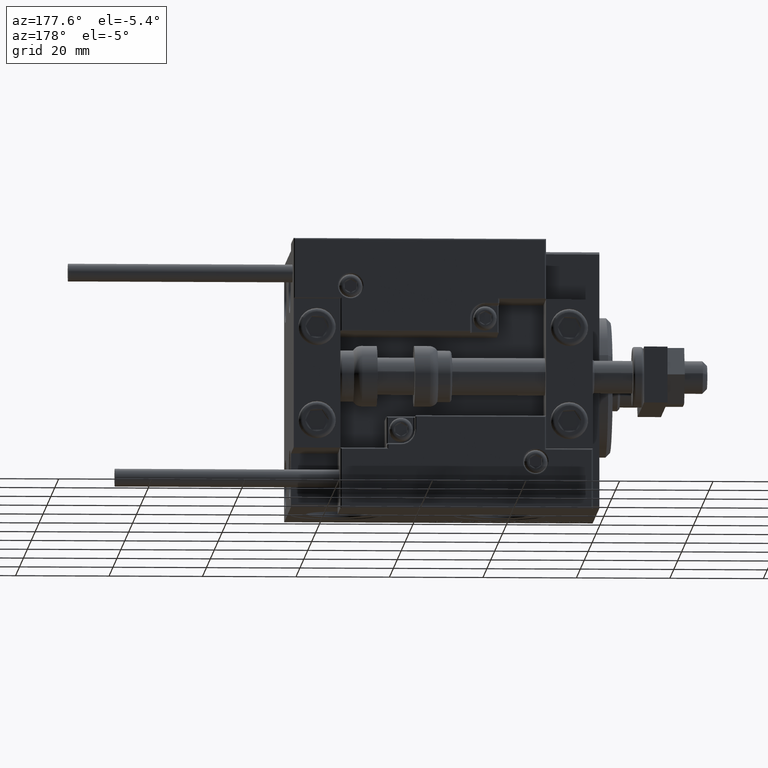
[diagram: clean part render]
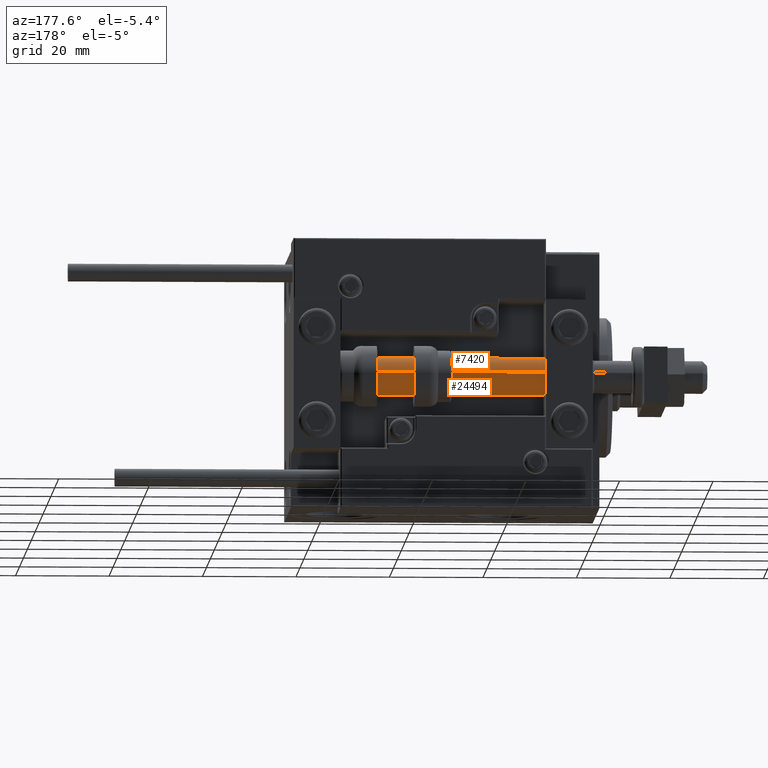
[diagram: same view with one multi-face feature highlighted, each face labeled with its STEP entity id]
A machine part, auxiliary view. The highlighted faces form ONE feature: a constant-radius fillet chain: 2 tangent blend faces with common blend radius 4 mm. The faces share edges in the B-rep.
Their STEP definitions:
[1] entity #24494 (Cylinder):
#1472 = LINE ( 'NONE', #17005, #49169 ) ;
#3094 = DIRECTION ( 'NONE',  ( 1.000000000000000000, 0.000000000000000000, 0.000000000000000000 ) ) ;
#3493 = VECTOR ( 'NONE', #29666, 1000.000000000000000 ) ;
#4555 = CIRCLE ( 'NONE', #46066, 4.000000000000000000 ) ;
#6916 = CARTESIAN_POINT ( 'NONE',  ( 0.000000000000000000, 0.000000000000000000, 2.000000000000029310 ) ) ;
#7863 = CARTESIAN_POINT ( 'NONE',  ( -4.000000000000000000, 0.000000000000000000, 2.000000000000029310 ) ) ;
#8105 = AXIS2_PLACEMENT_3D ( 'NONE', #17484, #17982, #9845 ) ;
#9845 = DIRECTION ( 'NONE',  ( -1.000000000000000000, 0.000000000000000000, 0.000000000000000000 ) ) ;
#11664 = EDGE_CURVE ( 'NONE', #14762, #21387, #4555, .T. ) ;
#14141 = LINE ( 'NONE', #45480, #3493 ) ;
#14762 = VERTEX_POINT ( 'NONE', #43101 ) ;
#15980 = ORIENTED_EDGE ( 'NONE', *, *, #47345, .T. ) ;
#16066 = ORIENTED_EDGE ( 'NONE', *, *, #11664, .F. ) ;
#16491 = EDGE_LOOP ( 'NONE', ( #19307, #16066, #47642, #15980 ) ) ;
#17005 = CARTESIAN_POINT ( 'NONE',  ( 4.000000000000000000, 4.898587196589412829E-16, 66.00000000000000000 ) ) ;
#17484 = CARTESIAN_POINT ( 'NONE',  ( 0.000000000000000000, 0.000000000000000000, 66.00000000000000000 ) ) ;
#17849 = FACE_OUTER_BOUND ( 'NONE', #16491, .T. ) ;
#17982 = DIRECTION ( 'NONE',  ( -0.000000000000000000, -0.000000000000000000, -1.000000000000000000 ) ) ;
#18223 = CARTESIAN_POINT ( 'NONE',  ( 4.000000000000000000, 4.898587196589412829E-16, 2.000000000000029310 ) ) ;
#19307 = ORIENTED_EDGE ( 'NONE', *, *, #31605, .F. ) ;
#19613 = DIRECTION ( 'NONE',  ( 0.000000000000000000, 0.000000000000000000, 1.000000000000000000 ) ) ;
#21387 = VERTEX_POINT ( 'NONE', #34748 ) ;
#24494 = ADVANCED_FACE ( 'NONE', ( #17849 ), #44495, .T. ) ;
#29666 = DIRECTION ( 'NONE',  ( -0.000000000000000000, -0.000000000000000000, -1.000000000000000000 ) ) ;
#31384 = AXIS2_PLACEMENT_3D ( 'NONE', #6916, #34183, #3094 ) ;
#31605 = EDGE_CURVE ( 'NONE', #21387, #36682, #1472, .T. ) ;
#32545 = DIRECTION ( 'NONE',  ( -0.000000000000000000, -0.000000000000000000, -1.000000000000000000 ) ) ;
#34183 = DIRECTION ( 'NONE',  ( -0.000000000000000000, -0.000000000000000000, 1.000000000000000000 ) ) ;
#34748 = CARTESIAN_POINT ( 'NONE',  ( 4.000000000000000000, 4.898587196589412829E-16, 66.00000000000000000 ) ) ;
#36682 = VERTEX_POINT ( 'NONE', #18223 ) ;
#39679 = EDGE_CURVE ( 'NONE', #14762, #43088, #14141, .T. ) ;
#43088 = VERTEX_POINT ( 'NONE', #7863 ) ;
#43101 = CARTESIAN_POINT ( 'NONE',  ( -4.000000000000000000, 0.000000000000000000, 66.00000000000000000 ) ) ;
#44495 = CYLINDRICAL_SURFACE ( 'NONE', #8105, 4.000000000000000000 ) ;
#45480 = CARTESIAN_POINT ( 'NONE',  ( -4.000000000000000000, 0.000000000000000000, 66.00000000000000000 ) ) ;
#46066 = AXIS2_PLACEMENT_3D ( 'NONE', #47392, #19613, #47142 ) ;
#46868 = CIRCLE ( 'NONE', #31384, 4.000000000000000000 ) ;
#47142 = DIRECTION ( 'NONE',  ( 1.000000000000000000, 0.000000000000000000, 0.000000000000000000 ) ) ;
#47345 = EDGE_CURVE ( 'NONE', #43088, #36682, #46868, .T. ) ;
#47392 = CARTESIAN_POINT ( 'NONE',  ( 0.000000000000000000, 0.000000000000000000, 66.00000000000000000 ) ) ;
#47642 = ORIENTED_EDGE ( 'NONE', *, *, #39679, .T. ) ;
#49169 = VECTOR ( 'NONE', #32545, 1000.000000000000000 ) ;
[2] entity #7420 (Cylinder):
#1472 = LINE ( 'NONE', #17005, #49169 ) ;
#1676 = CYLINDRICAL_SURFACE ( 'NONE', #3624, 4.000000000000000000 ) ;
#2030 = ORIENTED_EDGE ( 'NONE', *, *, #22429, .T. ) ;
#3493 = VECTOR ( 'NONE', #29666, 1000.000000000000000 ) ;
#3624 = AXIS2_PLACEMENT_3D ( 'NONE', #29433, #22045, #40655 ) ;
#4793 = EDGE_LOOP ( 'NONE', ( #33856, #36790, #2030, #21681 ) ) ;
#5619 = CIRCLE ( 'NONE', #8876, 4.000000000000000000 ) ;
#6502 = FACE_OUTER_BOUND ( 'NONE', #4793, .T. ) ;
#7185 = DIRECTION ( 'NONE',  ( 1.000000000000000000, 0.000000000000000000, 0.000000000000000000 ) ) ;
#7420 = ADVANCED_FACE ( 'NONE', ( #6502 ), #1676, .T. ) ;
#7863 = CARTESIAN_POINT ( 'NONE',  ( -4.000000000000000000, 0.000000000000000000, 2.000000000000029310 ) ) ;
#8876 = AXIS2_PLACEMENT_3D ( 'NONE', #38273, #30609, #7185 ) ;
#13417 = DIRECTION ( 'NONE',  ( 0.000000000000000000, 0.000000000000000000, 1.000000000000000000 ) ) ;
#13925 = CARTESIAN_POINT ( 'NONE',  ( 0.000000000000000000, 0.000000000000000000, 66.00000000000000000 ) ) ;
#14141 = LINE ( 'NONE', #45480, #3493 ) ;
#14762 = VERTEX_POINT ( 'NONE', #43101 ) ;
#17005 = CARTESIAN_POINT ( 'NONE',  ( 4.000000000000000000, 4.898587196589412829E-16, 66.00000000000000000 ) ) ;
#18223 = CARTESIAN_POINT ( 'NONE',  ( 4.000000000000000000, 4.898587196589412829E-16, 2.000000000000029310 ) ) ;
#21387 = VERTEX_POINT ( 'NONE', #34748 ) ;
#21681 = ORIENTED_EDGE ( 'NONE', *, *, #39679, .F. ) ;
#22045 = DIRECTION ( 'NONE',  ( -0.000000000000000000, -0.000000000000000000, -1.000000000000000000 ) ) ;
#22429 = EDGE_CURVE ( 'NONE', #36682, #43088, #5619, .T. ) ;
#24614 = EDGE_CURVE ( 'NONE', #21387, #14762, #40662, .T. ) ;
#28947 = DIRECTION ( 'NONE',  ( 1.000000000000000000, 0.000000000000000000, 0.000000000000000000 ) ) ;
#29433 = CARTESIAN_POINT ( 'NONE',  ( 0.000000000000000000, 0.000000000000000000, 66.00000000000000000 ) ) ;
#29666 = DIRECTION ( 'NONE',  ( -0.000000000000000000, -0.000000000000000000, -1.000000000000000000 ) ) ;
#30609 = DIRECTION ( 'NONE',  ( -0.000000000000000000, -0.000000000000000000, 1.000000000000000000 ) ) ;
#31605 = EDGE_CURVE ( 'NONE', #21387, #36682, #1472, .T. ) ;
#32545 = DIRECTION ( 'NONE',  ( -0.000000000000000000, -0.000000000000000000, -1.000000000000000000 ) ) ;
#33856 = ORIENTED_EDGE ( 'NONE', *, *, #24614, .F. ) ;
#34748 = CARTESIAN_POINT ( 'NONE',  ( 4.000000000000000000, 4.898587196589412829E-16, 66.00000000000000000 ) ) ;
#36682 = VERTEX_POINT ( 'NONE', #18223 ) ;
#36790 = ORIENTED_EDGE ( 'NONE', *, *, #31605, .T. ) ;
#37427 = AXIS2_PLACEMENT_3D ( 'NONE', #13925, #13417, #28947 ) ;
#38273 = CARTESIAN_POINT ( 'NONE',  ( 0.000000000000000000, 0.000000000000000000, 2.000000000000029310 ) ) ;
#39679 = EDGE_CURVE ( 'NONE', #14762, #43088, #14141, .T. ) ;
#40655 = DIRECTION ( 'NONE',  ( -1.000000000000000000, 0.000000000000000000, 0.000000000000000000 ) ) ;
#40662 = CIRCLE ( 'NONE', #37427, 4.000000000000000000 ) ;
#43088 = VERTEX_POINT ( 'NONE', #7863 ) ;
#43101 = CARTESIAN_POINT ( 'NONE',  ( -4.000000000000000000, 0.000000000000000000, 66.00000000000000000 ) ) ;
#45480 = CARTESIAN_POINT ( 'NONE',  ( -4.000000000000000000, 0.000000000000000000, 66.00000000000000000 ) ) ;
#49169 = VECTOR ( 'NONE', #32545, 1000.000000000000000 ) ;